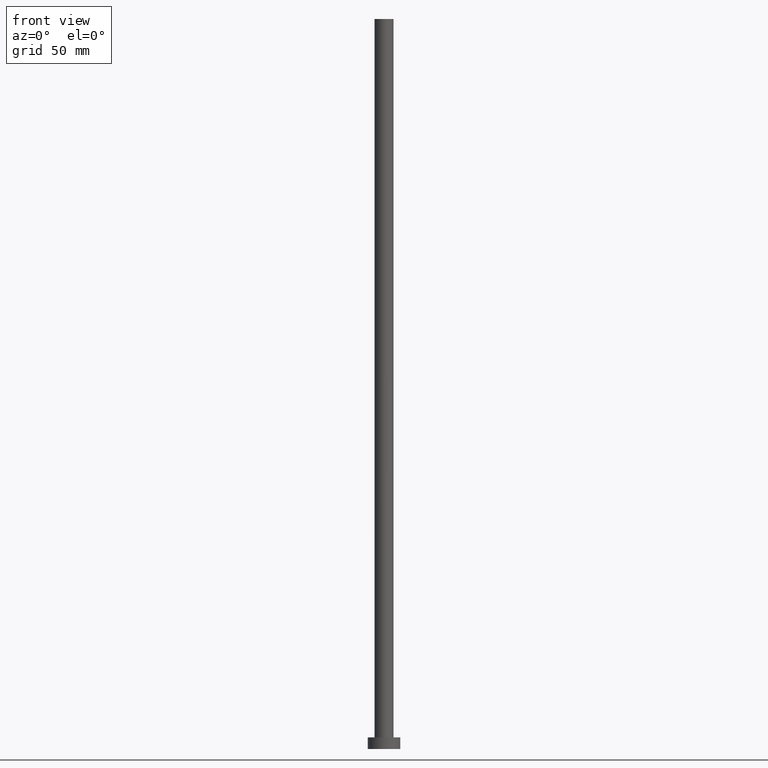
[diagram: clean part render]
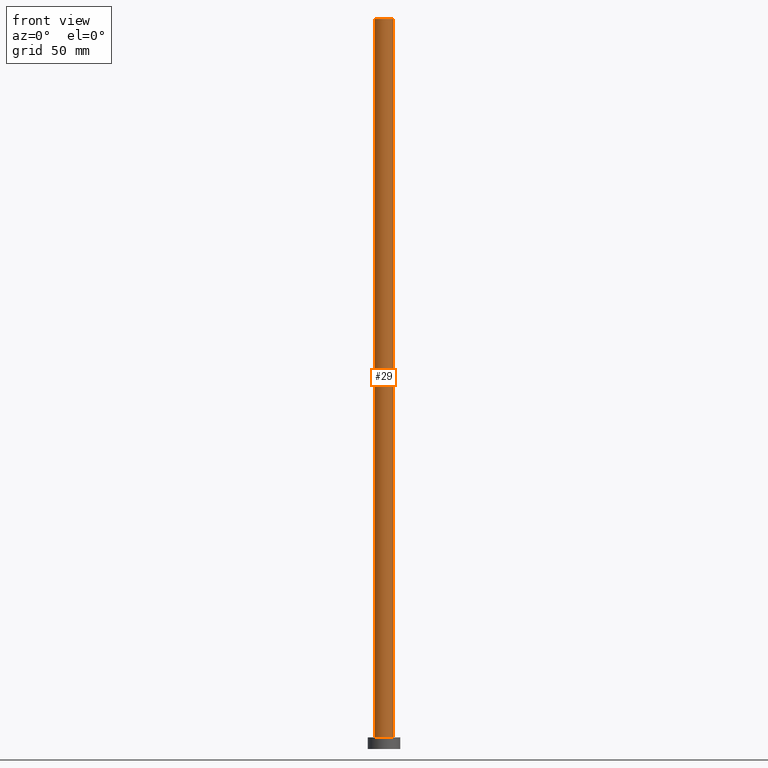
[diagram: same view with one face highlighted and labeled with its STEP entity id]
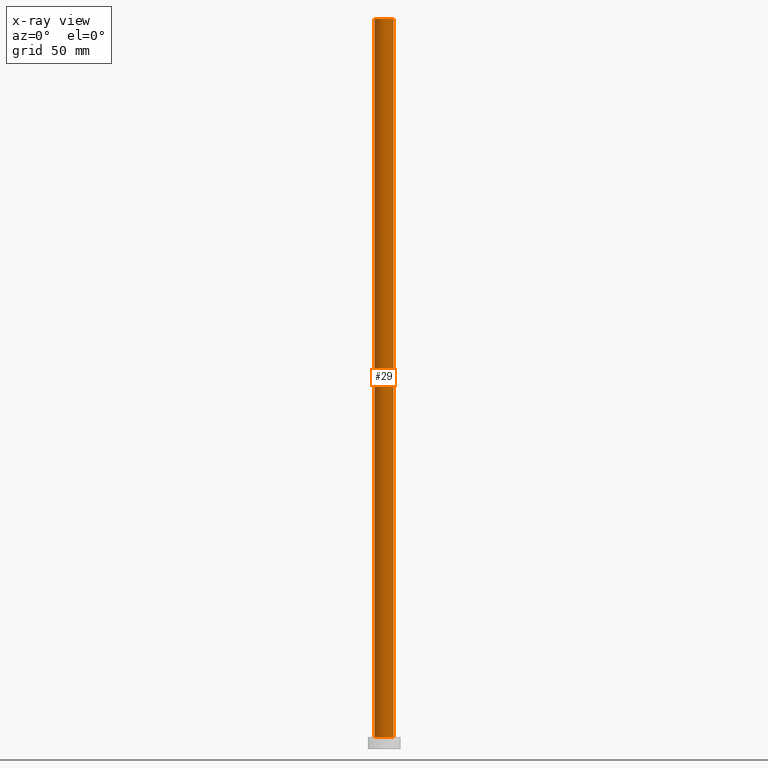
[diagram: x-ray of the same camera — body ghosted, the highlighted face saturated]
A machine part, front view. The second image highlights one B-rep face of the part: STEP entity #29.
The next image is the same camera in x-ray: the body ghosted, the highlighted face saturated — about 0% of this face is hidden behind the body in this view.
In plain terms, the highlighted cylindrical surface (edge-blend (fillet) strip) has radius 4.1 mm, axis along (-0, -0, -1).
Its self-contained STEP definition (entity closure, byte-faithful):
#1 = CYLINDRICAL_SURFACE ( 'NONE', #187, 4.099999999999999645 ) ;
#3 = DIRECTION ( 'NONE',  ( 0.000000000000000000, 0.000000000000000000, 1.000000000000000000 ) ) ;
#15 = EDGE_CURVE ( 'NONE', #175, #28, #119, .T. ) ;
#16 = DIRECTION ( 'NONE',  ( -0.000000000000000000, -0.000000000000000000, -1.000000000000000000 ) ) ;
#25 = EDGE_CURVE ( 'NONE', #189, #114, #234, .T. ) ;
#28 = VERTEX_POINT ( 'NONE', #132 ) ;
#29 = ADVANCED_FACE ( 'NONE', ( #99 ), #1, .T. ) ;
#33 = DIRECTION ( 'NONE',  ( -0.000000000000000000, -0.000000000000000000, -1.000000000000000000 ) ) ;
#43 = VECTOR ( 'NONE', #16, 1000.000000000000000 ) ;
#49 = DIRECTION ( 'NONE',  ( 0.000000000000000000, 0.000000000000000000, 1.000000000000000000 ) ) ;
#67 = CARTESIAN_POINT ( 'NONE',  ( 0.000000000000000000, 0.000000000000000000, 5.000000000000000000 ) ) ;
#85 = CARTESIAN_POINT ( 'NONE',  ( -4.099999999999999645, 0.000000000000000000, 5.000000000000000000 ) ) ;
#97 = CARTESIAN_POINT ( 'NONE',  ( 0.000000000000000000, 0.000000000000000000, 315.0000000000000000 ) ) ;
#99 = FACE_OUTER_BOUND ( 'NONE', #242, .T. ) ;
#102 = CARTESIAN_POINT ( 'NONE',  ( 4.099999999999999645, 5.021051876504147385E-16, 5.000000000000000000 ) ) ;
#111 = DIRECTION ( 'NONE',  ( -1.000000000000000000, 0.000000000000000000, 0.000000000000000000 ) ) ;
#114 = VERTEX_POINT ( 'NONE', #102 ) ;
#115 = LINE ( 'NONE', #196, #245 ) ;
#118 = CARTESIAN_POINT ( 'NONE',  ( 4.099999999999999645, 5.021051876504147385E-16, 315.0000000000000000 ) ) ;
#119 = CIRCLE ( 'NONE', #202, 4.099999999999999645 ) ;
#132 = CARTESIAN_POINT ( 'NONE',  ( 4.099999999999999645, 5.021051876504147385E-16, 315.0000000000000000 ) ) ;
#134 = DIRECTION ( 'NONE',  ( -0.000000000000000000, -0.000000000000000000, -1.000000000000000000 ) ) ;
#140 = ORIENTED_EDGE ( 'NONE', *, *, #172, .F. ) ;
#145 = DIRECTION ( 'NONE',  ( 1.000000000000000000, 0.000000000000000000, 0.000000000000000000 ) ) ;
#152 = ORIENTED_EDGE ( 'NONE', *, *, #174, .T. ) ;
#165 = ORIENTED_EDGE ( 'NONE', *, *, #25, .T. ) ;
#171 = CARTESIAN_POINT ( 'NONE',  ( -4.099999999999999645, 0.000000000000000000, 315.0000000000000000 ) ) ;
#172 = EDGE_CURVE ( 'NONE', #28, #114, #224, .T. ) ;
#174 = EDGE_CURVE ( 'NONE', #175, #189, #115, .T. ) ;
#175 = VERTEX_POINT ( 'NONE', #171 ) ;
#187 = AXIS2_PLACEMENT_3D ( 'NONE', #215, #134, #111 ) ;
#189 = VERTEX_POINT ( 'NONE', #85 ) ;
#196 = CARTESIAN_POINT ( 'NONE',  ( -4.099999999999999645, 0.000000000000000000, 315.0000000000000000 ) ) ;
#202 = AXIS2_PLACEMENT_3D ( 'NONE', #97, #49, #145 ) ;
#205 = ORIENTED_EDGE ( 'NONE', *, *, #15, .F. ) ;
#215 = CARTESIAN_POINT ( 'NONE',  ( 0.000000000000000000, 0.000000000000000000, 315.0000000000000000 ) ) ;
#224 = LINE ( 'NONE', #118, #43 ) ;
#234 = CIRCLE ( 'NONE', #246, 4.099999999999999645 ) ;
#241 = DIRECTION ( 'NONE',  ( 1.000000000000000000, 0.000000000000000000, 0.000000000000000000 ) ) ;
#242 = EDGE_LOOP ( 'NONE', ( #140, #205, #152, #165 ) ) ;
#245 = VECTOR ( 'NONE', #33, 1000.000000000000000 ) ;
#246 = AXIS2_PLACEMENT_3D ( 'NONE', #67, #3, #241 ) ;